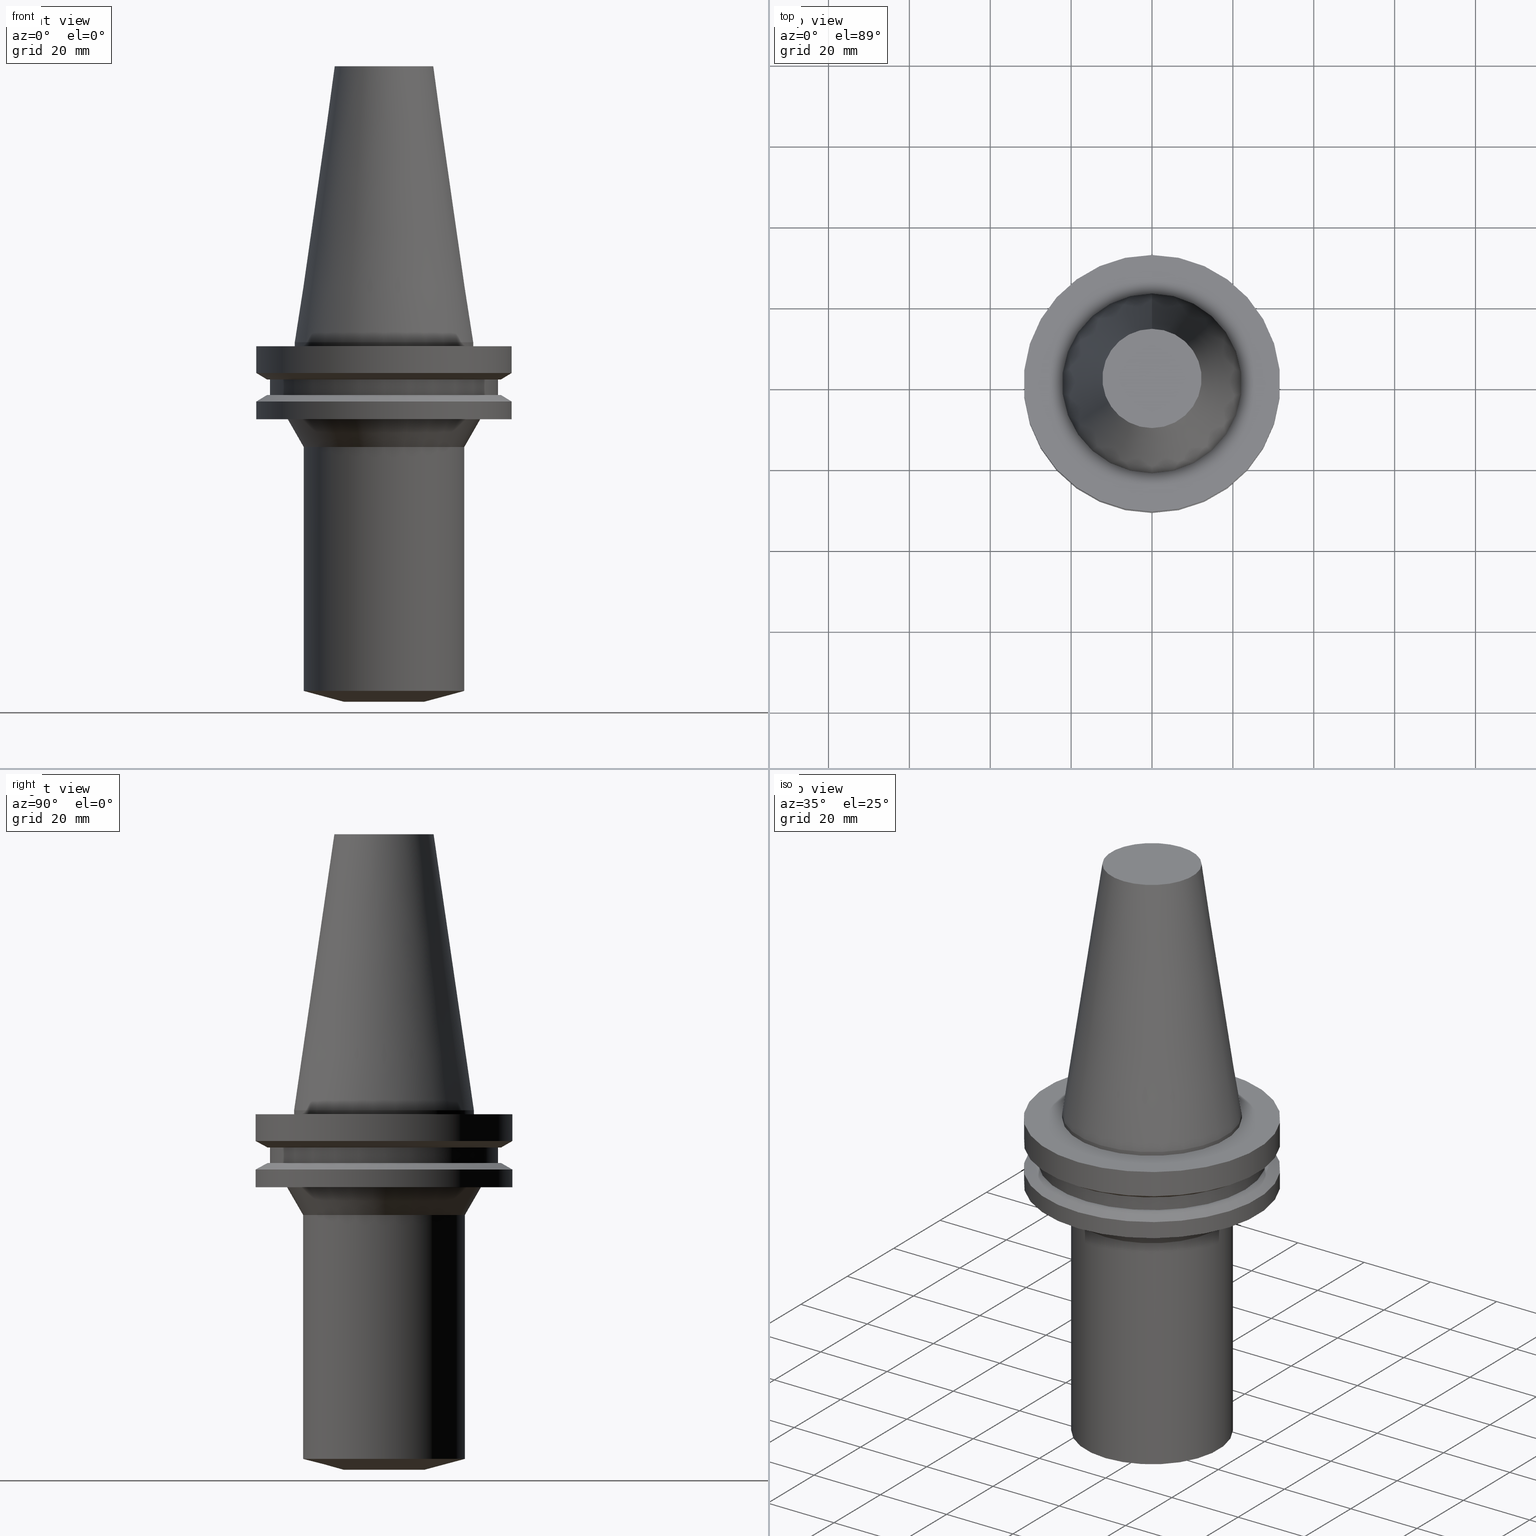
[diagram: canonical four-view strip — front | top / right | iso, engineering-drawing reading convention]
A machine part, canonical four-view strip (front | top / right | iso — engineering-drawing reading convention). The complete STEP part file that produces these views, byte-faithful:
ISO-10303-21;
HEADER;
FILE_DESCRIPTION((''),'1');
FILE_NAME('V:/01_Dxf_Field-HP\X2\FF71FF6FFF8CFF9F5916\X0\2013/BIGKAISER\X2\FF76FF80FF9BFF78FF9E63B28F095206\X0\_BKUS_201803/BCV40Y-BSL/BCV40Y-BSL.625-3.5.stp','2018-03-13T06:19:23',(''),(''),'Spatial Interop R21 SP3','Kubotek KeyCreator 2011 V10.0.2 (22737)',' ');
FILE_SCHEMA(('automotive_design'));
ENDSEC;
DATA;
#1=MECHANICAL_DESIGN_GEOMETRIC_PRESENTATION_REPRESENTATION(' ',(#10,#11,#12,#13,#14,#15,#16,#17,#18,#19,#20,#21,#22,#23,#24,#25,#26,#27,#28,#29,#30,#31,#32,#33,#34,#35,#36,#37,#38,#39,#40,#41),#6);
#2=PRODUCT_DEFINITION_CONTEXT('',#42,'design');
#3=APPLICATION_PROTOCOL_DEFINITION('INTERNATIONAL STANDARD','automotive_design',1994,#42);
#4=PRODUCT_CATEGORY_RELATIONSHIP('NONE','NONE',#43,#44);
#5=SHAPE_DEFINITION_REPRESENTATION(#45,#46);
#6= (GEOMETRIC_REPRESENTATION_CONTEXT(3)GLOBAL_UNCERTAINTY_ASSIGNED_CONTEXT((#49))GLOBAL_UNIT_ASSIGNED_CONTEXT((#51,#52,#53))REPRESENTATION_CONTEXT('NONE','WORKSPACE'));
#10=STYLED_ITEM('',(#55,#56),#57);
#11=STYLED_ITEM('',(#58),#59);
#12=STYLED_ITEM('',(#60,#61),#62);
#13=STYLED_ITEM('',(#63,#64),#65);
#14=STYLED_ITEM('',(#66,#67),#68);
#15=STYLED_ITEM('',(#69,#70),#71);
#16=STYLED_ITEM('',(#72),#73);
#17=STYLED_ITEM('',(#74,#75),#76);
#18=STYLED_ITEM('',(#77,#78),#79);
#19=STYLED_ITEM('',(#80,#81),#82);
#20=STYLED_ITEM('',(#83,#84),#85);
#21=STYLED_ITEM('',(#86),#87);
#22=STYLED_ITEM('',(#88,#89),#90);
#23=STYLED_ITEM('',(#91,#92),#93);
#24=STYLED_ITEM('',(#94),#95);
#25=STYLED_ITEM('',(#96),#97);
#26=STYLED_ITEM('',(#98),#99);
#27=STYLED_ITEM('',(#100),#101);
#28=STYLED_ITEM('',(#102),#103);
#29=STYLED_ITEM('',(#104,#105),#106);
#30=STYLED_ITEM('',(#107),#108);
#31=STYLED_ITEM('',(#109),#110);
#32=STYLED_ITEM('',(#111),#112);
#33=STYLED_ITEM('',(#113),#114);
#34=STYLED_ITEM('',(#115,#116),#117);
#35=STYLED_ITEM('',(#118),#119);
#36=STYLED_ITEM('',(#120),#121);
#37=STYLED_ITEM('',(#122,#123),#124);
#38=STYLED_ITEM('',(#125,#126),#127);
#39=STYLED_ITEM('',(#128,#129),#130);
#40=STYLED_ITEM('',(#131,#132),#133);
#41=STYLED_ITEM('',(#134),#135);
#42=APPLICATION_CONTEXT(' ');
#43=PRODUCT_CATEGORY('part','NONE');
#44=PRODUCT_RELATED_PRODUCT_CATEGORY('detail',' ',(#136));
#45=PRODUCT_DEFINITION_SHAPE('NONE','NONE',#137);
#46=ADVANCED_BREP_SHAPE_REPRESENTATION('Unnamed[1]',(#90,#138),#6);
#49=UNCERTAINTY_MEASURE_WITH_UNIT(LENGTH_MEASURE(1.0E-006),#51,'','');
#51= (CONVERSION_BASED_UNIT('MILLIMETRE',#141)LENGTH_UNIT()NAMED_UNIT(#144));
#52= (NAMED_UNIT(#146)PLANE_ANGLE_UNIT()SI_UNIT($,.RADIAN.));
#53= (NAMED_UNIT(#146)SOLID_ANGLE_UNIT()SI_UNIT($,.STERADIAN.));
#55=PRESENTATION_STYLE_ASSIGNMENT((#152));
#56=PRESENTATION_STYLE_ASSIGNMENT((#153));
#57=ADVANCED_FACE('Unnamed[1]',(#154),#155,.T.);
#58=PRESENTATION_STYLE_ASSIGNMENT((#156));
#59=EDGE_CURVE('Unnamed[1]',#157,#157,#158,.T.);
#60=PRESENTATION_STYLE_ASSIGNMENT((#159));
#61=PRESENTATION_STYLE_ASSIGNMENT((#160));
#62=ADVANCED_FACE('Unnamed[1]',(#161,#162),#163,.T.);
#63=PRESENTATION_STYLE_ASSIGNMENT((#164));
#64=PRESENTATION_STYLE_ASSIGNMENT((#165));
#65=ADVANCED_FACE('Unnamed[1]',(#166,#167),#168,.T.);
#66=PRESENTATION_STYLE_ASSIGNMENT((#169));
#67=PRESENTATION_STYLE_ASSIGNMENT((#170));
#68=ADVANCED_FACE('Unnamed[1]',(#171,#172),#173,.T.);
#69=PRESENTATION_STYLE_ASSIGNMENT((#174));
#70=PRESENTATION_STYLE_ASSIGNMENT((#175));
#71=ADVANCED_FACE('Unnamed[1]',(#176,#177),#178,.T.);
#72=PRESENTATION_STYLE_ASSIGNMENT((#179));
#73=EDGE_CURVE('Unnamed[1]',#180,#180,#181,.T.);
#74=PRESENTATION_STYLE_ASSIGNMENT((#182));
#75=PRESENTATION_STYLE_ASSIGNMENT((#183));
#76=ADVANCED_FACE('Unnamed[1]',(#184,#185),#186,.T.);
#77=PRESENTATION_STYLE_ASSIGNMENT((#187));
#78=PRESENTATION_STYLE_ASSIGNMENT((#188));
#79=ADVANCED_FACE('Unnamed[1]',(#189,#190),#191,.T.);
#80=PRESENTATION_STYLE_ASSIGNMENT((#192));
#81=PRESENTATION_STYLE_ASSIGNMENT((#193));
#82=ADVANCED_FACE('Unnamed[1]',(#194,#195),#196,.T.);
#83=PRESENTATION_STYLE_ASSIGNMENT((#197));
#84=PRESENTATION_STYLE_ASSIGNMENT((#198));
#85=ADVANCED_FACE('Unnamed[1]',(#199,#200),#201,.T.);
#86=PRESENTATION_STYLE_ASSIGNMENT((#202));
#87=EDGE_CURVE('Unnamed[1]',#203,#203,#204,.T.);
#88=PRESENTATION_STYLE_ASSIGNMENT((#205));
#89=PRESENTATION_STYLE_ASSIGNMENT((#206));
#90=MANIFOLD_SOLID_BREP('Unnamed[1]',#207);
#91=PRESENTATION_STYLE_ASSIGNMENT((#208));
#92=PRESENTATION_STYLE_ASSIGNMENT((#209));
#93=ADVANCED_FACE('Unnamed[1]',(#210,#211),#212,.T.);
#94=PRESENTATION_STYLE_ASSIGNMENT((#213));
#95=EDGE_CURVE('Unnamed[1]',#214,#214,#215,.T.);
#96=PRESENTATION_STYLE_ASSIGNMENT((#216));
#97=EDGE_CURVE('Unnamed[1]',#217,#217,#218,.T.);
#98=PRESENTATION_STYLE_ASSIGNMENT((#219));
#99=EDGE_CURVE('Unnamed[1]',#220,#220,#221,.T.);
#100=PRESENTATION_STYLE_ASSIGNMENT((#222));
#101=EDGE_CURVE('Unnamed[1]',#223,#223,#224,.T.);
#102=PRESENTATION_STYLE_ASSIGNMENT((#225));
#103=EDGE_CURVE('Unnamed[1]',#226,#226,#227,.T.);
#104=PRESENTATION_STYLE_ASSIGNMENT((#228));
#105=PRESENTATION_STYLE_ASSIGNMENT((#229));
#106=ADVANCED_FACE('Unnamed[1]',(#230,#231),#232,.T.);
#107=PRESENTATION_STYLE_ASSIGNMENT((#233));
#108=EDGE_CURVE('Unnamed[1]',#234,#234,#235,.T.);
#109=PRESENTATION_STYLE_ASSIGNMENT((#236));
#110=EDGE_CURVE('Unnamed[1]',#237,#237,#238,.T.);
#111=PRESENTATION_STYLE_ASSIGNMENT((#239));
#112=EDGE_CURVE('Unnamed[1]',#240,#240,#241,.T.);
#113=PRESENTATION_STYLE_ASSIGNMENT((#242));
#114=EDGE_CURVE('Unnamed[1]',#243,#243,#244,.T.);
#115=PRESENTATION_STYLE_ASSIGNMENT((#245));
#116=PRESENTATION_STYLE_ASSIGNMENT((#246));
#117=ADVANCED_FACE('Unnamed[1]',(#247,#248),#249,.T.);
#118=PRESENTATION_STYLE_ASSIGNMENT((#250));
#119=EDGE_CURVE('Unnamed[1]',#251,#251,#252,.T.);
#120=PRESENTATION_STYLE_ASSIGNMENT((#253));
#121=EDGE_CURVE('Unnamed[1]',#254,#254,#255,.T.);
#122=PRESENTATION_STYLE_ASSIGNMENT((#256));
#123=PRESENTATION_STYLE_ASSIGNMENT((#257));
#124=ADVANCED_FACE('Unnamed[1]',(#258,#259),#260,.T.);
#125=PRESENTATION_STYLE_ASSIGNMENT((#261));
#126=PRESENTATION_STYLE_ASSIGNMENT((#262));
#127=ADVANCED_FACE('Unnamed[1]',(#263),#264,.T.);
#128=PRESENTATION_STYLE_ASSIGNMENT((#265));
#129=PRESENTATION_STYLE_ASSIGNMENT((#266));
#130=ADVANCED_FACE('Unnamed[1]',(#267,#268),#269,.T.);
#131=PRESENTATION_STYLE_ASSIGNMENT((#270));
#132=PRESENTATION_STYLE_ASSIGNMENT((#271));
#133=ADVANCED_FACE('Unnamed[1]',(#272,#273),#274,.T.);
#134=PRESENTATION_STYLE_ASSIGNMENT((#275));
#135=EDGE_CURVE('Unnamed[1]',#276,#276,#277,.T.);
#136=PRODUCT('Unnamed[1]','Unnamed[1]','PART-Unnamed[1]-DESC',(#278));
#137=PRODUCT_DEFINITION('NONE','NONE',#279,#2);
#138=AXIS2_PLACEMENT_3D('',#280,#281,#282);
#141=LENGTH_MEASURE_WITH_UNIT(LENGTH_MEASURE(1.0),#283);
#144=DIMENSIONAL_EXPONENTS(1.0,0.0,0.0,0.0,0.0,0.0,0.0);
#146=DIMENSIONAL_EXPONENTS(0.0,0.0,0.0,0.0,0.0,0.0,0.0);
#152=SURFACE_STYLE_USAGE(.BOTH.,#284);
#153=CURVE_STYLE('',#285,POSITIVE_LENGTH_MEASURE(1000.0),#286);
#154=FACE_OUTER_BOUND('',#287,.T.);
#155=PLANE('',#288);
#156=CURVE_STYLE('',#289,POSITIVE_LENGTH_MEASURE(1000.0),#290);
#157=VERTEX_POINT('',#291);
#158=CIRCLE('',#292,28.18);
#159=SURFACE_STYLE_USAGE(.BOTH.,#293);
#160=CURVE_STYLE('',#294,POSITIVE_LENGTH_MEASURE(1000.0),#295);
#161=FACE_BOUND('',#296,.T.);
#162=FACE_BOUND('',#297,.T.);
#163=CYLINDRICAL_SURFACE('',#298,22.225);
#164=SURFACE_STYLE_USAGE(.BOTH.,#299);
#165=CURVE_STYLE('',#300,POSITIVE_LENGTH_MEASURE(1000.0),#301);
#166=FACE_BOUND('',#302,.T.);
#167=FACE_BOUND('',#303,.T.);
#168=CYLINDRICAL_SURFACE('',#304,31.75);
#169=SURFACE_STYLE_USAGE(.BOTH.,#305);
#170=CURVE_STYLE('',#306,POSITIVE_LENGTH_MEASURE(1000.0),#307);
#171=FACE_BOUND('',#308,.T.);
#172=FACE_BOUND('',#309,.T.);
#173=CONICAL_SURFACE('',#310,30.365080955,1.04719755034994);
#174=SURFACE_STYLE_USAGE(.BOTH.,#311);
#175=CURVE_STYLE('',#312,POSITIVE_LENGTH_MEASURE(1000.0),#313);
#176=FACE_BOUND('',#314,.T.);
#177=FACE_BOUND('',#315,.T.);
#178=CYLINDRICAL_SURFACE('',#316,19.9999999999957);
#179=CURVE_STYLE('',#317,POSITIVE_LENGTH_MEASURE(1000.0),#318);
#180=VERTEX_POINT('',#319);
#181=CIRCLE('',#320,9.99999999999634);
#182=SURFACE_STYLE_USAGE(.BOTH.,#321);
#183=CURVE_STYLE('',#322,POSITIVE_LENGTH_MEASURE(1000.0),#323);
#184=FACE_OUTER_BOUND('',#324,.T.);
#185=FACE_BOUND('',#325,.T.);
#186=PLANE('',#326);
#187=SURFACE_STYLE_USAGE(.BOTH.,#327);
#188=CURVE_STYLE('',#328,POSITIVE_LENGTH_MEASURE(1000.0),#329);
#189=FACE_BOUND('',#330,.T.);
#190=FACE_BOUND('',#331,.T.);
#191=CONICAL_SURFACE('',#332,17.2484375007384,0.144812498217751);
#192=SURFACE_STYLE_USAGE(.BOTH.,#333);
#193=CURVE_STYLE('',#334,POSITIVE_LENGTH_MEASURE(1000.0),#335);
#194=FACE_BOUND('',#336,.T.);
#195=FACE_BOUND('',#337,.T.);
#196=CONICAL_SURFACE('',#338,14.9999999999964,1.30899693899575);
#197=SURFACE_STYLE_USAGE(.BOTH.,#339);
#198=CURVE_STYLE('',#340,POSITIVE_LENGTH_MEASURE(1000.0),#341);
#199=FACE_BOUND('',#342,.T.);
#200=FACE_BOUND('',#343,.T.);
#201=CONICAL_SURFACE('',#344,21.977424671969,0.523598775598268);
#202=CURVE_STYLE('',#345,POSITIVE_LENGTH_MEASURE(1000.0),#346);
#203=VERTEX_POINT('',#347);
#204=CIRCLE('',#348,28.95591319);
#205=SURFACE_STYLE_USAGE(.BOTH.,#349);
#206=CURVE_STYLE('',#350,POSITIVE_LENGTH_MEASURE(1000.0),#351);
#207=CLOSED_SHELL('',(#57,#79,#62,#76,#65,#68,#93,#124,#117,#106,#130,#133,#85,#71,#82,#127));
#208=SURFACE_STYLE_USAGE(.BOTH.,#352);
#209=CURVE_STYLE('',#353,POSITIVE_LENGTH_MEASURE(1000.0),#354);
#210=FACE_BOUND('',#355,.T.);
#211=FACE_OUTER_BOUND('',#356,.T.);
#212=PLANE('',#357);
#213=CURVE_STYLE('',#358,POSITIVE_LENGTH_MEASURE(1000.0),#359);
#214=VERTEX_POINT('',#360);
#215=CIRCLE('',#361,22.225);
#216=CURVE_STYLE('',#362,POSITIVE_LENGTH_MEASURE(1000.0),#363);
#217=VERTEX_POINT('',#364);
#218=CIRCLE('',#365,22.225);
#219=CURVE_STYLE('',#366,POSITIVE_LENGTH_MEASURE(1000.0),#367);
#220=VERTEX_POINT('',#368);
#221=CIRCLE('',#369,28.98016191);
#222=CURVE_STYLE('',#370,POSITIVE_LENGTH_MEASURE(1000.0),#371);
#223=VERTEX_POINT('',#372);
#224=CIRCLE('',#373,31.75);
#225=CURVE_STYLE('',#374,POSITIVE_LENGTH_MEASURE(1000.0),#375);
#226=VERTEX_POINT('',#376);
#227=CIRCLE('',#377,23.954849343943);
#228=SURFACE_STYLE_USAGE(.BOTH.,#378);
#229=CURVE_STYLE('',#379,POSITIVE_LENGTH_MEASURE(1000.0),#380);
#230=FACE_BOUND('',#381,.T.);
#231=FACE_BOUND('',#382,.T.);
#232=CONICAL_SURFACE('',#383,30.352956595,1.04719755170464);
#233=CURVE_STYLE('',#384,POSITIVE_LENGTH_MEASURE(1000.0),#385);
#234=VERTEX_POINT('',#386);
#235=CIRCLE('',#387,31.75);
#236=CURVE_STYLE('',#388,POSITIVE_LENGTH_MEASURE(1000.0),#389);
#237=VERTEX_POINT('',#390);
#238=CIRCLE('',#391,19.999999999995);
#239=CURVE_STYLE('',#392,POSITIVE_LENGTH_MEASURE(1000.0),#393);
#240=VERTEX_POINT('',#394);
#241=CIRCLE('',#395,31.75);
#242=CURVE_STYLE('',#396,POSITIVE_LENGTH_MEASURE(1000.0),#397);
#243=VERTEX_POINT('',#398);
#244=CIRCLE('',#399,19.9999999999965);
#245=SURFACE_STYLE_USAGE(.BOTH.,#400);
#246=CURVE_STYLE('',#401,POSITIVE_LENGTH_MEASURE(1000.0),#402);
#247=FACE_OUTER_BOUND('',#403,.T.);
#248=FACE_BOUND('',#404,.T.);
#249=PLANE('',#405);
#250=CURVE_STYLE('',#406,POSITIVE_LENGTH_MEASURE(1000.0),#407);
#251=VERTEX_POINT('',#408);
#252=CIRCLE('',#409,28.18);
#253=CURVE_STYLE('',#410,POSITIVE_LENGTH_MEASURE(1000.0),#411);
#254=VERTEX_POINT('',#412);
#255=CIRCLE('',#413,31.75);
#256=SURFACE_STYLE_USAGE(.BOTH.,#414);
#257=CURVE_STYLE('',#415,POSITIVE_LENGTH_MEASURE(1000.0),#416);
#258=FACE_BOUND('',#417,.T.);
#259=FACE_BOUND('',#418,.T.);
#260=CYLINDRICAL_SURFACE('',#419,28.18);
#261=SURFACE_STYLE_USAGE(.BOTH.,#420);
#262=CURVE_STYLE('',#421,POSITIVE_LENGTH_MEASURE(1000.0),#422);
#263=FACE_OUTER_BOUND('',#423,.T.);
#264=PLANE('',#424);
#265=SURFACE_STYLE_USAGE(.BOTH.,#425);
#266=CURVE_STYLE('',#426,POSITIVE_LENGTH_MEASURE(1000.0),#427);
#267=FACE_BOUND('',#428,.T.);
#268=FACE_BOUND('',#429,.T.);
#269=CYLINDRICAL_SURFACE('',#430,31.75);
#270=SURFACE_STYLE_USAGE(.BOTH.,#431);
#271=CURVE_STYLE('',#432,POSITIVE_LENGTH_MEASURE(1000.0),#433);
#272=FACE_BOUND('',#434,.T.);
#273=FACE_OUTER_BOUND('',#435,.T.);
#274=PLANE('',#436);
#275=CURVE_STYLE('',#437,POSITIVE_LENGTH_MEASURE(1000.0),#438);
#276=VERTEX_POINT('',#439);
#277=CIRCLE('',#440,12.2718750014769);
#278=PRODUCT_CONTEXT('',#42,'mechanical');
#279=PRODUCT_DEFINITION_FORMATION_WITH_SPECIFIED_SOURCE(' ','NONE',#136,.NOT_KNOWN.);
#280=CARTESIAN_POINT('',(0.0,0.0,0.0));
#281=DIRECTION('',(0.0,0.0,1.0));
#282=DIRECTION('',(1.0,0.0,0.0));
#283= (NAMED_UNIT(#144)LENGTH_UNIT()SI_UNIT(.MILLI.,.METRE.));
#284=SURFACE_SIDE_STYLE('',(#442));
#285=DRAUGHTING_PRE_DEFINED_CURVE_FONT('continuous');
#286=COLOUR_RGB('',0.0,1.0,0.0);
#287=EDGE_LOOP('',(#443));
#288=AXIS2_PLACEMENT_3D('',#444,#445,#446);
#289=DRAUGHTING_PRE_DEFINED_CURVE_FONT('continuous');
#290=COLOUR_RGB('',0.0,1.0,0.0);
#291=CARTESIAN_POINT('',(5.63337527607782E-016,28.18,-9.2));
#292=AXIS2_PLACEMENT_3D('',#447,#448,#449);
#293=SURFACE_SIDE_STYLE('',(#450));
#294=DRAUGHTING_PRE_DEFINED_CURVE_FONT('continuous');
#295=COLOUR_RGB('',0.0,1.0,0.0);
#296=EDGE_LOOP('',(#451));
#297=EDGE_LOOP('',(#452));
#298=AXIS2_PLACEMENT_3D('',#453,#454,#455);
#299=SURFACE_SIDE_STYLE('',(#456));
#300=DRAUGHTING_PRE_DEFINED_CURVE_FONT('continuous');
#301=COLOUR_RGB('',0.0,1.0,0.0);
#302=EDGE_LOOP('',(#457));
#303=EDGE_LOOP('',(#458));
#304=AXIS2_PLACEMENT_3D('',#459,#460,#461);
#305=SURFACE_SIDE_STYLE('',(#462));
#306=DRAUGHTING_PRE_DEFINED_CURVE_FONT('continuous');
#307=COLOUR_RGB('',0.0,1.0,0.0);
#308=EDGE_LOOP('',(#463));
#309=EDGE_LOOP('',(#464));
#310=AXIS2_PLACEMENT_3D('',#465,#466,#467);
#311=SURFACE_SIDE_STYLE('',(#468));
#312=DRAUGHTING_PRE_DEFINED_CURVE_FONT('continuous');
#313=COLOUR_RGB('',0.0,1.0,0.0);
#314=EDGE_LOOP('',(#469));
#315=EDGE_LOOP('',(#470));
#316=AXIS2_PLACEMENT_3D('',#471,#472,#473);
#317=DRAUGHTING_PRE_DEFINED_CURVE_FONT('continuous');
#318=COLOUR_RGB('',0.0,1.0,0.0);
#319=CARTESIAN_POINT('',(5.44355502220991E-015,9.99999999999635,-88.8999999999988));
#320=AXIS2_PLACEMENT_3D('',#474,#475,#476);
#321=SURFACE_SIDE_STYLE('',(#477));
#322=DRAUGHTING_PRE_DEFINED_CURVE_FONT('continuous');
#323=COLOUR_RGB('',0.0,1.0,0.0);
#324=EDGE_LOOP('',(#478));
#325=EDGE_LOOP('',(#479));
#326=AXIS2_PLACEMENT_3D('',#480,#481,#482);
#327=SURFACE_SIDE_STYLE('',(#483));
#328=DRAUGHTING_PRE_DEFINED_CURVE_FONT('continuous');
#329=COLOUR_RGB('',0.0,1.0,0.0);
#330=EDGE_LOOP('',(#484));
#331=EDGE_LOOP('',(#485));
#332=AXIS2_PLACEMENT_3D('',#486,#487,#488);
#333=SURFACE_SIDE_STYLE('',(#489));
#334=DRAUGHTING_PRE_DEFINED_CURVE_FONT('continuous');
#335=COLOUR_RGB('',0.0,1.0,0.0);
#336=EDGE_LOOP('',(#490));
#337=EDGE_LOOP('',(#491));
#338=AXIS2_PLACEMENT_3D('',#492,#493,#494);
#339=SURFACE_SIDE_STYLE('',(#495));
#340=DRAUGHTING_PRE_DEFINED_CURVE_FONT('continuous');
#341=COLOUR_RGB('',0.0,1.0,0.0);
#342=EDGE_LOOP('',(#496));
#343=EDGE_LOOP('',(#497));
#344=AXIS2_PLACEMENT_3D('',#498,#499,#500);
#345=DRAUGHTING_PRE_DEFINED_CURVE_FONT('continuous');
#346=COLOUR_RGB('',0.0,1.0,0.0);
#347=CARTESIAN_POINT('',(7.98469713044073E-016,28.95591319,-13.04));
#348=AXIS2_PLACEMENT_3D('',#501,#502,#503);
#349=SURFACE_SIDE_STYLE('',(#504));
#350=DRAUGHTING_PRE_DEFINED_CURVE_FONT('continuous');
#351=COLOUR_RGB('',0.0,1.0,0.0);
#352=SURFACE_SIDE_STYLE('',(#505));
#353=DRAUGHTING_PRE_DEFINED_CURVE_FONT('continuous');
#354=COLOUR_RGB('',0.0,1.0,0.0);
#355=EDGE_LOOP('',(#506));
#356=EDGE_LOOP('',(#507));
#357=AXIS2_PLACEMENT_3D('',#508,#509,#510);
#358=DRAUGHTING_PRE_DEFINED_CURVE_FONT('continuous');
#359=COLOUR_RGB('',0.0,1.0,0.0);
#360=CARTESIAN_POINT('',(6.12323399573674E-017,22.225,-0.999999999999997));
#361=AXIS2_PLACEMENT_3D('',#511,#512,#513);
#362=DRAUGHTING_PRE_DEFINED_CURVE_FONT('continuous');
#363=COLOUR_RGB('',0.0,1.0,0.0);
#364=CARTESIAN_POINT('',(-2.73944275289641E-031,22.225,2.72177751110499E-015));
#365=AXIS2_PLACEMENT_3D('',#514,#515,#516);
#366=DRAUGHTING_PRE_DEFINED_CURVE_FONT('continuous');
#367=COLOUR_RGB('',0.0,1.0,0.0);
#368=CARTESIAN_POINT('',(5.63337527607782E-016,28.98016191,-9.2));
#369=AXIS2_PLACEMENT_3D('',#517,#518,#519);
#370=DRAUGHTING_PRE_DEFINED_CURVE_FONT('continuous');
#371=COLOUR_RGB('',0.0,1.0,0.0);
#372=CARTESIAN_POINT('',(8.97247689112643E-016,31.75,-14.65316677));
#373=AXIS2_PLACEMENT_3D('',#520,#521,#522);
#374=DRAUGHTING_PRE_DEFINED_CURVE_FONT('continuous');
#375=COLOUR_RGB('',0.0,1.0,0.0);
#376=CARTESIAN_POINT('',(1.16647607618785E-015,23.954849343943,-19.05));
#377=AXIS2_PLACEMENT_3D('',#523,#524,#525);
#378=SURFACE_SIDE_STYLE('',(#526));
#379=DRAUGHTING_PRE_DEFINED_CURVE_FONT('continuous');
#380=COLOUR_RGB('',0.0,1.0,0.0);
#381=EDGE_LOOP('',(#527));
#382=EDGE_LOOP('',(#528));
#383=AXIS2_PLACEMENT_3D('',#529,#530,#531);
#384=DRAUGHTING_PRE_DEFINED_CURVE_FONT('continuous');
#385=COLOUR_RGB('',0.0,1.0,0.0);
#386=CARTESIAN_POINT('',(6.12323399573673E-017,31.75,-0.999999999999996));
#387=AXIS2_PLACEMENT_3D('',#532,#533,#534);
#388=DRAUGHTING_PRE_DEFINED_CURVE_FONT('continuous');
#389=COLOUR_RGB('',0.0,1.0,0.0);
#390=CARTESIAN_POINT('',(1.58591760489576E-015,19.999999999995,-25.899999999999));
#391=AXIS2_PLACEMENT_3D('',#535,#536,#537);
#392=DRAUGHTING_PRE_DEFINED_CURVE_FONT('continuous');
#393=COLOUR_RGB('',0.0,1.0,0.0);
#394=CARTESIAN_POINT('',(1.16647607618785E-015,31.75,-19.05));
#395=AXIS2_PLACEMENT_3D('',#538,#539,#540);
#396=DRAUGHTING_PRE_DEFINED_CURVE_FONT('continuous');
#397=COLOUR_RGB('',0.0,1.0,0.0);
#398=CARTESIAN_POINT('',(5.27948346178746E-015,19.9999999999965,-86.2205080756876));
#399=AXIS2_PLACEMENT_3D('',#541,#542,#543);
#400=SURFACE_SIDE_STYLE('',(#544));
#401=DRAUGHTING_PRE_DEFINED_CURVE_FONT('continuous');
#402=COLOUR_RGB('',0.0,1.0,0.0);
#403=EDGE_LOOP('',(#545));
#404=EDGE_LOOP('',(#546));
#405=AXIS2_PLACEMENT_3D('',#547,#548,#549);
#406=DRAUGHTING_PRE_DEFINED_CURVE_FONT('continuous');
#407=COLOUR_RGB('',0.0,1.0,0.0);
#408=CARTESIAN_POINT('',(7.98469713044073E-016,28.18,-13.04));
#409=AXIS2_PLACEMENT_3D('',#550,#551,#552);
#410=DRAUGHTING_PRE_DEFINED_CURVE_FONT('continuous');
#411=COLOUR_RGB('',0.0,1.0,0.0);
#412=CARTESIAN_POINT('',(4.65416804298617E-016,31.75,-7.60083323));
#413=AXIS2_PLACEMENT_3D('',#553,#554,#555);
#414=SURFACE_SIDE_STYLE('',(#556));
#415=DRAUGHTING_PRE_DEFINED_CURVE_FONT('continuous');
#416=COLOUR_RGB('',0.0,1.0,0.0);
#417=EDGE_LOOP('',(#557));
#418=EDGE_LOOP('',(#558));
#419=AXIS2_PLACEMENT_3D('',#559,#560,#561);
#420=SURFACE_SIDE_STYLE('',(#562));
#421=DRAUGHTING_PRE_DEFINED_CURVE_FONT('continuous');
#422=COLOUR_RGB('',0.0,1.0,0.0);
#423=EDGE_LOOP('',(#563));
#424=AXIS2_PLACEMENT_3D('',#564,#565,#566);
#425=SURFACE_SIDE_STYLE('',(#567));
#426=DRAUGHTING_PRE_DEFINED_CURVE_FONT('continuous');
#427=COLOUR_RGB('',0.0,1.0,0.0);
#428=EDGE_LOOP('',(#568));
#429=EDGE_LOOP('',(#569));
#430=AXIS2_PLACEMENT_3D('',#570,#571,#572);
#431=SURFACE_SIDE_STYLE('',(#573));
#432=DRAUGHTING_PRE_DEFINED_CURVE_FONT('continuous');
#433=COLOUR_RGB('',0.0,1.0,0.0);
#434=EDGE_LOOP('',(#574));
#435=EDGE_LOOP('',(#575));
#436=AXIS2_PLACEMENT_3D('',#576,#577,#578);
#437=DRAUGHTING_PRE_DEFINED_CURVE_FONT('continuous');
#438=COLOUR_RGB('',0.0,1.0,0.0);
#439=CARTESIAN_POINT('',(-4.17910720209034E-015,12.2718750014769,68.25));
#440=AXIS2_PLACEMENT_3D('',#579,#580,#581);
#442=SURFACE_STYLE_FILL_AREA(#582);
#443=ORIENTED_EDGE('',*,*,#135,.F.);
#444=CARTESIAN_POINT('',(-4.17910720209034E-015,6.13593750073843,68.25));
#445=DIRECTION('',(-6.12323399573677E-017,-1.22464679914735E-016,1.0));
#446=DIRECTION('',(1.23259516440783E-032,-1.0,-1.22464679914735E-016));
#447=CARTESIAN_POINT('',(5.63337527607783E-016,1.12667505521557E-015,-9.2));
#448=DIRECTION('',(6.12323399573677E-017,1.22464679914735E-016,-1.0));
#449=DIRECTION('',(-1.23259516440783E-032,1.0,1.22464679914735E-016));
#450=SURFACE_STYLE_FILL_AREA(#583);
#451=ORIENTED_EDGE('',*,*,#95,.F.);
#452=ORIENTED_EDGE('',*,*,#97,.T.);
#453=CARTESIAN_POINT('',(3.06161699786838E-017,6.12323399573676E-017,-0.5));
#454=DIRECTION('',(6.12323399573677E-017,1.22464679914735E-016,-1.0));
#455=DIRECTION('',(-1.23259516440783E-032,1.0,1.22464679914735E-016));
#456=SURFACE_STYLE_FILL_AREA(#584);
#457=ORIENTED_EDGE('',*,*,#121,.F.);
#458=ORIENTED_EDGE('',*,*,#108,.T.);
#459=CARTESIAN_POINT('',(2.63324572127992E-016,5.26649144255985E-016,-4.300416615));
#460=DIRECTION('',(6.12323399573677E-017,1.22464679914735E-016,-1.0));
#461=DIRECTION('',(-1.23259516440783E-032,1.0,1.22464679914735E-016));
#462=SURFACE_STYLE_FILL_AREA(#585);
#463=ORIENTED_EDGE('',*,*,#99,.F.);
#464=ORIENTED_EDGE('',*,*,#121,.T.);
#465=CARTESIAN_POINT('',(5.143771659532E-016,1.0287543319064E-015,-8.40041661500001));
#466=DIRECTION('',(-6.12323399573677E-017,-1.22464679914735E-016,1.0));
#467=DIRECTION('',(-1.23259516440783E-032,1.0,1.22464679914735E-016));
#468=SURFACE_STYLE_FILL_AREA(#586);
#469=ORIENTED_EDGE('',*,*,#114,.F.);
#470=ORIENTED_EDGE('',*,*,#110,.T.);
#471=CARTESIAN_POINT('',(3.43270053334161E-015,6.86540106668322E-015,-56.0602540378433));
#472=DIRECTION('',(6.12323399573677E-017,1.22464679914735E-016,-1.0));
#473=DIRECTION('',(-1.23259516440783E-032,1.0,1.22464679914735E-016));
#474=CARTESIAN_POINT('',(5.44355502220991E-015,1.08871100444198E-014,-88.8999999999988));
#475=DIRECTION('',(6.12323399573677E-017,1.22464679914735E-016,-1.0));
#476=DIRECTION('',(-1.23259516440783E-032,1.0,1.22464679914735E-016));
#477=SURFACE_STYLE_FILL_AREA(#587);
#478=ORIENTED_EDGE('',*,*,#108,.F.);
#479=ORIENTED_EDGE('',*,*,#95,.T.);
#480=CARTESIAN_POINT('',(6.12323399573673E-017,26.9875,-0.999999999999997));
#481=DIRECTION('',(-6.12323399573677E-017,-1.22464679914735E-016,1.0));
#482=DIRECTION('',(1.23259516440783E-032,-1.0,-1.22464679914735E-016));
#483=SURFACE_STYLE_FILL_AREA(#588);
#484=ORIENTED_EDGE('',*,*,#97,.F.);
#485=ORIENTED_EDGE('',*,*,#135,.T.);
#486=CARTESIAN_POINT('',(-2.08955360104517E-015,-4.17910720209034E-015,34.125));
#487=DIRECTION('',(6.12323399573677E-017,1.22464679914735E-016,-1.0));
#488=DIRECTION('',(-1.23259516440783E-032,1.0,1.22464679914735E-016));
#489=SURFACE_STYLE_FILL_AREA(#589);
#490=ORIENTED_EDGE('',*,*,#73,.F.);
#491=ORIENTED_EDGE('',*,*,#114,.T.);
#492=CARTESIAN_POINT('',(5.36151924199869E-015,1.07230384839974E-014,-87.5602540378432));
#493=DIRECTION('',(-6.12323399573677E-017,-1.22464679914735E-016,1.0));
#494=DIRECTION('',(-1.23259516440783E-032,1.0,1.22464679914735E-016));
#495=SURFACE_STYLE_FILL_AREA(#590);
#496=ORIENTED_EDGE('',*,*,#110,.F.);
#497=ORIENTED_EDGE('',*,*,#103,.T.);
#498=CARTESIAN_POINT('',(1.37619684054181E-015,2.75239368108361E-015,-22.4749999999995));
#499=DIRECTION('',(-6.12323399573676E-017,-1.22464679914735E-016,1.0));
#500=DIRECTION('',(-1.23259516440783E-032,1.0,1.22464679914735E-016));
#501=CARTESIAN_POINT('',(7.98469713044074E-016,1.59693942608815E-015,-13.04));
#502=DIRECTION('',(6.12323399573677E-017,1.22464679914735E-016,-1.0));
#503=DIRECTION('',(-1.23259516440783E-032,1.0,1.22464679914735E-016));
#504=SURFACE_STYLE_FILL_AREA(#591);
#505=SURFACE_STYLE_FILL_AREA(#592);
#506=ORIENTED_EDGE('',*,*,#59,.F.);
#507=ORIENTED_EDGE('',*,*,#99,.T.);
#508=CARTESIAN_POINT('',(5.63337527607782E-016,28.580080955,-9.2));
#509=DIRECTION('',(6.12323399573677E-017,1.22464679914735E-016,-1.0));
#510=DIRECTION('',(-1.23259516440783E-032,1.0,1.22464679914735E-016));
#511=CARTESIAN_POINT('',(6.12323399573677E-017,1.22464679914735E-016,-1.0));
#512=DIRECTION('',(6.12323399573677E-017,1.22464679914735E-016,-1.0));
#513=DIRECTION('',(-1.23259516440783E-032,1.0,1.22464679914735E-016));
#514=CARTESIAN_POINT('',(0.0,0.0,0.0));
#515=DIRECTION('',(6.12323399573677E-017,1.22464679914735E-016,-1.0));
#516=DIRECTION('',(-1.23259516440783E-032,1.0,1.22464679914735E-016));
#517=CARTESIAN_POINT('',(5.63337527607783E-016,1.12667505521557E-015,-9.2));
#518=DIRECTION('',(6.12323399573677E-017,1.22464679914735E-016,-1.0));
#519=DIRECTION('',(-1.23259516440783E-032,1.0,1.22464679914735E-016));
#520=CARTESIAN_POINT('',(8.97247689112643E-016,1.79449537822529E-015,-14.65316677));
#521=DIRECTION('',(6.12323399573677E-017,1.22464679914735E-016,-1.0));
#522=DIRECTION('',(-1.23259516440783E-032,1.0,1.22464679914735E-016));
#523=CARTESIAN_POINT('',(1.16647607618785E-015,2.33295215237571E-015,-19.05));
#524=DIRECTION('',(6.12323399573677E-017,1.22464679914735E-016,-1.0));
#525=DIRECTION('',(-1.23259516440783E-032,1.0,1.22464679914735E-016));
#526=SURFACE_STYLE_FILL_AREA(#593);
#527=ORIENTED_EDGE('',*,*,#101,.F.);
#528=ORIENTED_EDGE('',*,*,#87,.T.);
#529=CARTESIAN_POINT('',(8.47858701078359E-016,1.69571740215672E-015,-13.846583385));
#530=DIRECTION('',(6.12323399573677E-017,1.22464679914735E-016,-1.0));
#531=DIRECTION('',(-1.23259516440783E-032,1.0,1.22464679914735E-016));
#532=CARTESIAN_POINT('',(6.12323399573677E-017,1.22464679914735E-016,-1.0));
#533=DIRECTION('',(6.12323399573677E-017,1.22464679914735E-016,-1.0));
#534=DIRECTION('',(-1.23259516440783E-032,1.0,1.22464679914735E-016));
#535=CARTESIAN_POINT('',(1.58591760489576E-015,3.17183520979152E-015,-25.899999999999));
#536=DIRECTION('',(6.12323399573677E-017,1.22464679914735E-016,-1.0));
#537=DIRECTION('',(-1.23259516440783E-032,1.0,1.22464679914735E-016));
#538=CARTESIAN_POINT('',(1.16647607618785E-015,2.33295215237571E-015,-19.05));
#539=DIRECTION('',(6.12323399573677E-017,1.22464679914735E-016,-1.0));
#540=DIRECTION('',(-1.23259516440783E-032,1.0,1.22464679914735E-016));
#541=CARTESIAN_POINT('',(5.27948346178746E-015,1.05589669235749E-014,-86.2205080756876));
#542=DIRECTION('',(6.12323399573677E-017,1.22464679914735E-016,-1.0));
#543=DIRECTION('',(-1.23259516440783E-032,1.0,1.22464679914735E-016));
#544=SURFACE_STYLE_FILL_AREA(#594);
#545=ORIENTED_EDGE('',*,*,#87,.F.);
#546=ORIENTED_EDGE('',*,*,#119,.T.);
#547=CARTESIAN_POINT('',(7.98469713044073E-016,28.567956595,-13.04));
#548=DIRECTION('',(-6.12323399573677E-017,-1.22464679914735E-016,1.0));
#549=DIRECTION('',(1.23259516440783E-032,-1.0,-1.22464679914735E-016));
#550=CARTESIAN_POINT('',(7.98469713044074E-016,1.59693942608815E-015,-13.04));
#551=DIRECTION('',(6.12323399573677E-017,1.22464679914735E-016,-1.0));
#552=DIRECTION('',(-1.23259516440783E-032,1.0,1.22464679914735E-016));
#553=CARTESIAN_POINT('',(4.65416804298617E-016,9.30833608597234E-016,-7.60083323000001));
#554=DIRECTION('',(6.12323399573677E-017,1.22464679914735E-016,-1.0));
#555=DIRECTION('',(-1.23259516440783E-032,1.0,1.22464679914735E-016));
#556=SURFACE_STYLE_FILL_AREA(#595);
#557=ORIENTED_EDGE('',*,*,#119,.F.);
#558=ORIENTED_EDGE('',*,*,#59,.T.);
#559=CARTESIAN_POINT('',(6.80903620325929E-016,1.36180724065186E-015,-11.12));
#560=DIRECTION('',(6.12323399573677E-017,1.22464679914735E-016,-1.0));
#561=DIRECTION('',(-1.23259516440783E-032,1.0,1.22464679914735E-016));
#562=SURFACE_STYLE_FILL_AREA(#596);
#563=ORIENTED_EDGE('',*,*,#73,.T.);
#564=CARTESIAN_POINT('',(5.44355502220991E-015,4.99999999999818,-88.8999999999988));
#565=DIRECTION('',(6.12323399573677E-017,1.22464679914735E-016,-1.0));
#566=DIRECTION('',(-1.23259516440783E-032,1.0,1.22464679914735E-016));
#567=SURFACE_STYLE_FILL_AREA(#597);
#568=ORIENTED_EDGE('',*,*,#112,.F.);
#569=ORIENTED_EDGE('',*,*,#101,.T.);
#570=CARTESIAN_POINT('',(1.03186188265025E-015,2.0637237653005E-015,-16.851583385));
#571=DIRECTION('',(6.12323399573677E-017,1.22464679914735E-016,-1.0));
#572=DIRECTION('',(-1.23259516440783E-032,1.0,1.22464679914735E-016));
#573=SURFACE_STYLE_FILL_AREA(#598);
#574=ORIENTED_EDGE('',*,*,#103,.F.);
#575=ORIENTED_EDGE('',*,*,#112,.T.);
#576=CARTESIAN_POINT('',(1.16647607618785E-015,27.8524246719715,-19.05));
#577=DIRECTION('',(6.12323399573677E-017,1.22464679914735E-016,-1.0));
#578=DIRECTION('',(-1.23259516440783E-032,1.0,1.22464679914735E-016));
#579=CARTESIAN_POINT('',(-4.17910720209034E-015,-8.35821440418068E-015,68.25));
#580=DIRECTION('',(6.12323399573677E-017,1.22464679914735E-016,-1.0));
#581=DIRECTION('',(-1.23259516440783E-032,1.0,1.22464679914735E-016));
#582=FILL_AREA_STYLE('',(#599));
#583=FILL_AREA_STYLE('',(#600));
#584=FILL_AREA_STYLE('',(#601));
#585=FILL_AREA_STYLE('',(#602));
#586=FILL_AREA_STYLE('',(#603));
#587=FILL_AREA_STYLE('',(#604));
#588=FILL_AREA_STYLE('',(#605));
#589=FILL_AREA_STYLE('',(#606));
#590=FILL_AREA_STYLE('',(#607));
#591=FILL_AREA_STYLE('',(#608));
#592=FILL_AREA_STYLE('',(#609));
#593=FILL_AREA_STYLE('',(#610));
#594=FILL_AREA_STYLE('',(#611));
#595=FILL_AREA_STYLE('',(#612));
#596=FILL_AREA_STYLE('',(#613));
#597=FILL_AREA_STYLE('',(#614));
#598=FILL_AREA_STYLE('',(#615));
#599=FILL_AREA_STYLE_COLOUR('',#616);
#600=FILL_AREA_STYLE_COLOUR('',#617);
#601=FILL_AREA_STYLE_COLOUR('',#618);
#602=FILL_AREA_STYLE_COLOUR('',#619);
#603=FILL_AREA_STYLE_COLOUR('',#620);
#604=FILL_AREA_STYLE_COLOUR('',#621);
#605=FILL_AREA_STYLE_COLOUR('',#622);
#606=FILL_AREA_STYLE_COLOUR('',#623);
#607=FILL_AREA_STYLE_COLOUR('',#624);
#608=FILL_AREA_STYLE_COLOUR('',#625);
#609=FILL_AREA_STYLE_COLOUR('',#626);
#610=FILL_AREA_STYLE_COLOUR('',#627);
#611=FILL_AREA_STYLE_COLOUR('',#628);
#612=FILL_AREA_STYLE_COLOUR('',#629);
#613=FILL_AREA_STYLE_COLOUR('',#630);
#614=FILL_AREA_STYLE_COLOUR('',#631);
#615=FILL_AREA_STYLE_COLOUR('',#632);
#616=COLOUR_RGB('',0.0,1.0,0.0);
#617=COLOUR_RGB('',0.0,1.0,0.0);
#618=COLOUR_RGB('',0.0,1.0,0.0);
#619=COLOUR_RGB('',0.0,1.0,0.0);
#620=COLOUR_RGB('',0.0,1.0,0.0);
#621=COLOUR_RGB('',0.0,1.0,0.0);
#622=COLOUR_RGB('',0.0,1.0,0.0);
#623=COLOUR_RGB('',0.0,1.0,0.0);
#624=COLOUR_RGB('',0.0,1.0,0.0);
#625=COLOUR_RGB('',0.0,1.0,0.0);
#626=COLOUR_RGB('',0.0,1.0,0.0);
#627=COLOUR_RGB('',0.0,1.0,0.0);
#628=COLOUR_RGB('',0.0,1.0,0.0);
#629=COLOUR_RGB('',0.0,1.0,0.0);
#630=COLOUR_RGB('',0.0,1.0,0.0);
#631=COLOUR_RGB('',0.0,1.0,0.0);
#632=COLOUR_RGB('',0.0,1.0,0.0);
ENDSEC;
END-ISO-10303-21;
